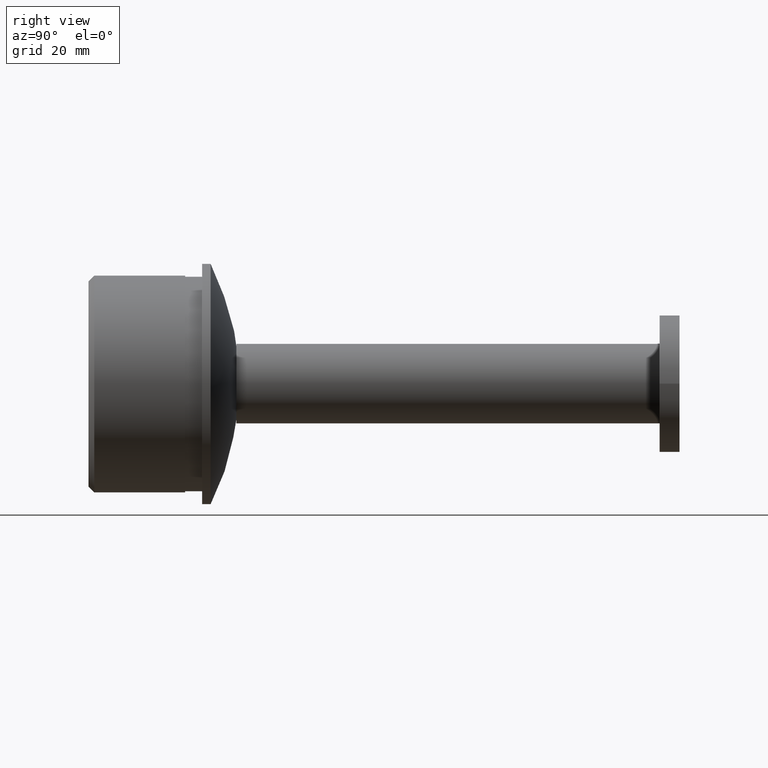
[diagram: clean part render]
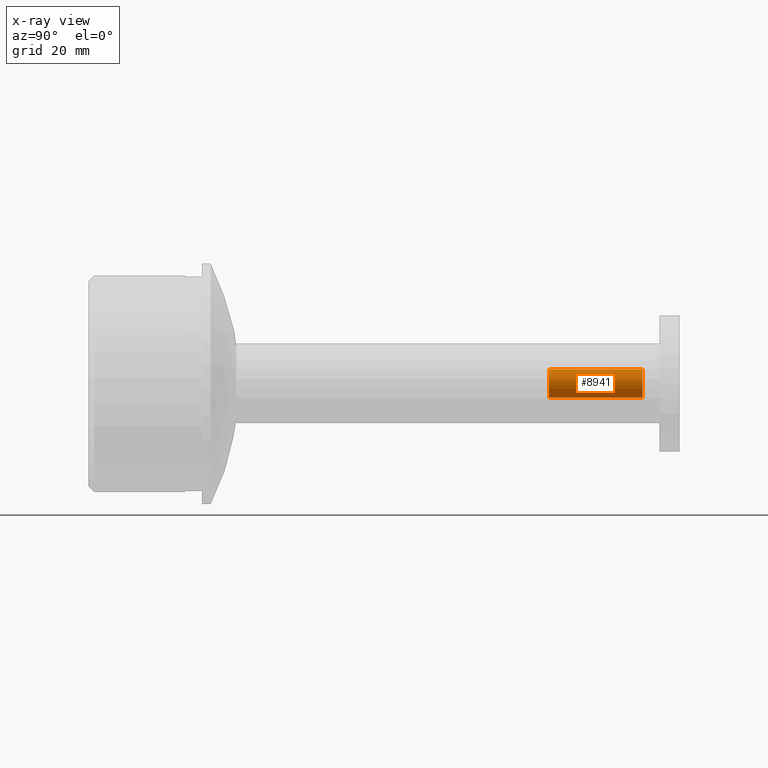
[diagram: x-ray — body ghosted, one internal face saturated and labeled with its STEP entity id]
A machine part, right view, then the same camera in x-ray: the body is ghosted and one INTERNAL B-rep face — a face not visible from any outside direction — is saturated and labeled: STEP entity #8941.
In plain terms, the highlighted cylindrical surface (bore or boss wall) has radius 2.5 mm, axis along (0, 1, 0).
Its self-contained STEP definition (entity closure, byte-faithful):
#1530 = CARTESIAN_POINT ( 'NONE',  ( 0.000000000000000000, 71.50000000000000000, 0.000000000000000000 ) ) ;
#2518 = EDGE_CURVE ( 'NONE', #4869, #4869, #17158, .T. ) ;
#4869 = VERTEX_POINT ( 'NONE', #17861 ) ;
#4922 = CARTESIAN_POINT ( 'NONE',  ( 0.000000000000000000, 54.99999999999999289, 0.000000000000000000 ) ) ;
#5119 = DIRECTION ( 'NONE',  ( -0.000000000000000000, 1.000000000000000000, -0.000000000000000000 ) ) ;
#5460 = CARTESIAN_POINT ( 'NONE',  ( 0.000000000000000000, 75.00000000000000000, 0.000000000000000000 ) ) ;
#5529 = ORIENTED_EDGE ( 'NONE', *, *, #10889, .T. ) ;
#6395 = DIRECTION ( 'NONE',  ( 0.000000000000000000, 0.000000000000000000, 1.000000000000000000 ) ) ;
#6752 = CIRCLE ( 'NONE', #7087, 2.499999999999997335 ) ;
#7087 = AXIS2_PLACEMENT_3D ( 'NONE', #1530, #7484, #10464 ) ;
#7484 = DIRECTION ( 'NONE',  ( -0.000000000000000000, 1.000000000000000000, -0.000000000000000000 ) ) ;
#7813 = CARTESIAN_POINT ( 'NONE',  ( 0.000000000000000000, 71.50000000000000000, 2.499999999999997335 ) ) ;
#8609 = FACE_OUTER_BOUND ( 'NONE', #12123, .T. ) ;
#8941 = ADVANCED_FACE ( 'NONE', ( #8609, #14275 ), #10853, .F. ) ;
#9913 = DIRECTION ( 'NONE',  ( -0.000000000000000000, 1.000000000000000000, -0.000000000000000000 ) ) ;
#10464 = DIRECTION ( 'NONE',  ( 0.000000000000000000, 0.000000000000000000, 1.000000000000000000 ) ) ;
#10763 = AXIS2_PLACEMENT_3D ( 'NONE', #4922, #5119, #6395 ) ;
#10853 = CYLINDRICAL_SURFACE ( 'NONE', #14810, 2.499999999999992895 ) ;
#10889 = EDGE_CURVE ( 'NONE', #17327, #17327, #6752, .T. ) ;
#12123 = EDGE_LOOP ( 'NONE', ( #5529 ) ) ;
#12820 = DIRECTION ( 'NONE',  ( 0.000000000000000000, 0.000000000000000000, 1.000000000000000000 ) ) ;
#12913 = ORIENTED_EDGE ( 'NONE', *, *, #2518, .F. ) ;
#14275 = FACE_OUTER_BOUND ( 'NONE', #15786, .T. ) ;
#14810 = AXIS2_PLACEMENT_3D ( 'NONE', #5460, #9913, #12820 ) ;
#15786 = EDGE_LOOP ( 'NONE', ( #12913 ) ) ;
#17158 = CIRCLE ( 'NONE', #10763, 2.499999999999994671 ) ;
#17327 = VERTEX_POINT ( 'NONE', #7813 ) ;
#17861 = CARTESIAN_POINT ( 'NONE',  ( 0.000000000000000000, 54.99999999999999289, 2.499999999999994671 ) ) ;